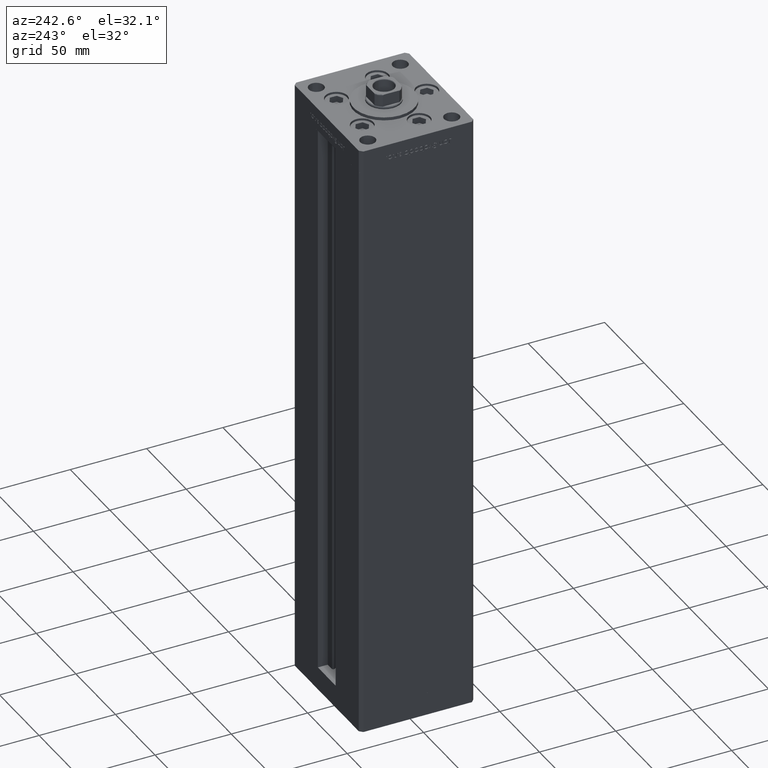
[diagram: clean part render]
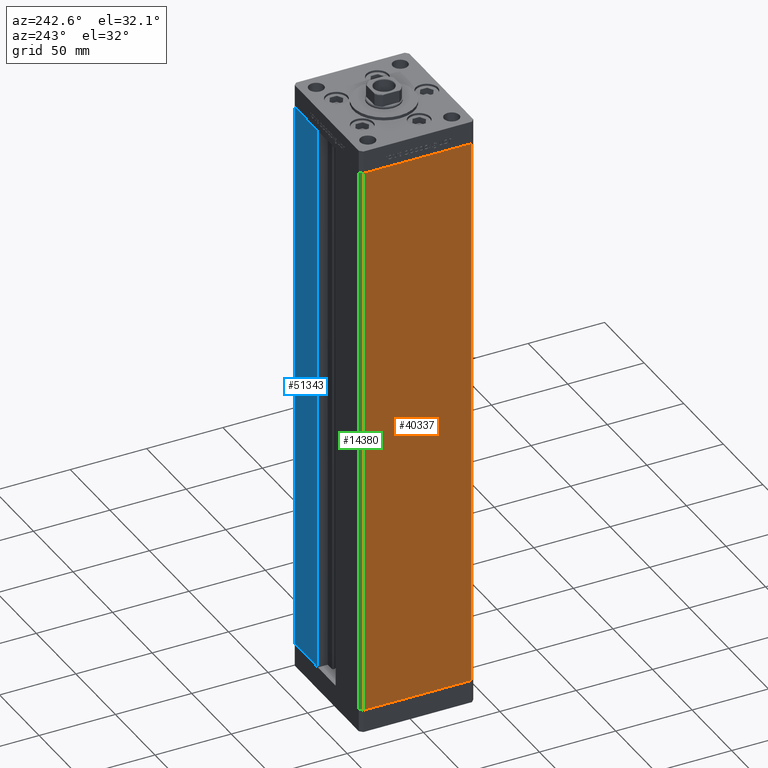
[diagram: same view with three faces highlighted in distinct colors, each labeled with its STEP entity id]
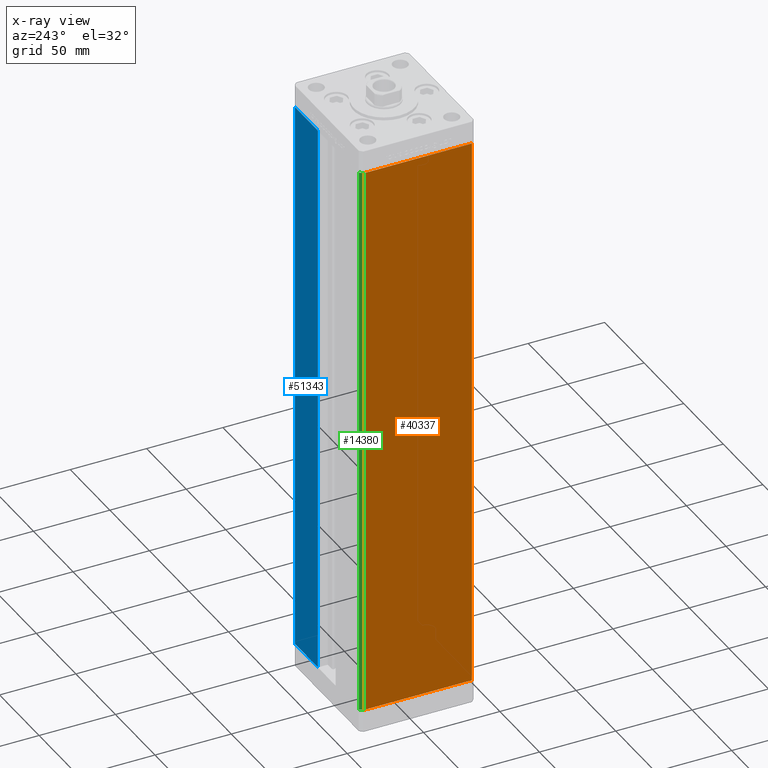
[diagram: x-ray of the same camera — body ghosted, the three highlighted faces saturated]
A machine part, auxiliary view with three faces highlighted in distinct colors.
The next image is the same camera in x-ray (body ghosted, the three faces saturated) — at least one of them is partly hidden behind the body in this view.
Their STEP definitions:

[orange] entity #40337 — the highlighted planar face has unit normal (1, 0, 0).
#719 = CARTESIAN_POINT ( 'NONE',  ( -42.50000000000000711, 35.50000000000001421, 368.5000000000000000 ) ) ;
#1169 = DIRECTION ( 'NONE',  ( 2.931927001650941360E-16, -1.000000000000000000, 0.000000000000000000 ) ) ;
#4866 = LINE ( 'NONE', #8816, #31546 ) ;
#7331 = DIRECTION ( 'NONE',  ( 2.931927001650941360E-16, -1.000000000000000000, 0.000000000000000000 ) ) ;
#8043 = VERTEX_POINT ( 'NONE', #40132 ) ;
#8116 = LINE ( 'NONE', #15243, #41186 ) ;
#8816 = CARTESIAN_POINT ( 'NONE',  ( -42.50000000000000711, 35.50000000000001421, 0.000000000000000000 ) ) ;
#14692 = LINE ( 'NONE', #47116, #24016 ) ;
#15108 = VECTOR ( 'NONE', #22028, 1000.000000000000000 ) ;
#15243 = CARTESIAN_POINT ( 'NONE',  ( -42.50000000000000711, 35.50000000000001421, 368.5000000000000000 ) ) ;
#16301 = ORIENTED_EDGE ( 'NONE', *, *, #16993, .T. ) ;
#16993 = EDGE_CURVE ( 'NONE', #22207, #38926, #4866, .T. ) ;
#22028 = DIRECTION ( 'NONE',  ( -0.000000000000000000, -0.000000000000000000, -1.000000000000000000 ) ) ;
#22207 = VERTEX_POINT ( 'NONE', #36219 ) ;
#22682 = AXIS2_PLACEMENT_3D ( 'NONE', #719, #41862, #48977 ) ;
#22702 = EDGE_CURVE ( 'NONE', #30307, #38926, #14692, .T. ) ;
#24016 = VECTOR ( 'NONE', #30786, 1000.000000000000000 ) ;
#25783 = PLANE ( 'NONE',  #22682 ) ;
#25999 = LINE ( 'NONE', #33123, #15108 ) ;
#30307 = VERTEX_POINT ( 'NONE', #47969 ) ;
#30786 = DIRECTION ( 'NONE',  ( -0.000000000000000000, -0.000000000000000000, -1.000000000000000000 ) ) ;
#31546 = VECTOR ( 'NONE', #1169, 1000.000000000000000 ) ;
#33123 = CARTESIAN_POINT ( 'NONE',  ( -42.50000000000000711, 35.50000000000001421, 368.5000000000000000 ) ) ;
#35977 = EDGE_CURVE ( 'NONE', #8043, #22207, #25999, .T. ) ;
#36219 = CARTESIAN_POINT ( 'NONE',  ( -42.50000000000000711, 35.50000000000001421, 0.000000000000000000 ) ) ;
#38440 = EDGE_CURVE ( 'NONE', #8043, #30307, #8116, .T. ) ;
#38926 = VERTEX_POINT ( 'NONE', #45190 ) ;
#40132 = CARTESIAN_POINT ( 'NONE',  ( -42.50000000000000711, 35.50000000000001421, 368.5000000000000000 ) ) ;
#40337 = ADVANCED_FACE ( 'NONE', ( #45557 ), #25783, .F. ) ;
#41186 = VECTOR ( 'NONE', #7331, 1000.000000000000000 ) ;
#41862 = DIRECTION ( 'NONE',  ( 1.000000000000000000, 2.931927001650941360E-16, -0.000000000000000000 ) ) ;
#45190 = CARTESIAN_POINT ( 'NONE',  ( -42.49999999999998579, -35.50000000000000711, 0.000000000000000000 ) ) ;
#45557 = FACE_OUTER_BOUND ( 'NONE', #47718, .T. ) ;
#47116 = CARTESIAN_POINT ( 'NONE',  ( -42.49999999999998579, -35.50000000000000711, 368.5000000000000000 ) ) ;
#47718 = EDGE_LOOP ( 'NONE', ( #16301, #50290, #51128, #51057 ) ) ;
#47969 = CARTESIAN_POINT ( 'NONE',  ( -42.49999999999998579, -35.50000000000000711, 368.5000000000000000 ) ) ;
#48977 = DIRECTION ( 'NONE',  ( -2.931927001650941360E-16, 1.000000000000000000, 0.000000000000000000 ) ) ;
#50290 = ORIENTED_EDGE ( 'NONE', *, *, #22702, .F. ) ;
#51057 = ORIENTED_EDGE ( 'NONE', *, *, #35977, .T. ) ;
#51128 = ORIENTED_EDGE ( 'NONE', *, *, #38440, .F. ) ;

[blue] entity #51343 — the highlighted planar face has unit normal (-0, -1, 0).
#840 = LINE ( 'NONE', #5060, #43769 ) ;
#1550 = CARTESIAN_POINT ( 'NONE',  ( 11.24999999999999289, 37.50000000000000000, 368.5000000000000000 ) ) ;
#2455 = CARTESIAN_POINT ( 'NONE',  ( 40.50000000000000000, 37.50000000000000711, 368.5000000000000000 ) ) ;
#5060 = CARTESIAN_POINT ( 'NONE',  ( 11.25000000000000000, 37.50000000000000000, 0.000000000000000000 ) ) ;
#10634 = LINE ( 'NONE', #34632, #35281 ) ;
#12416 = CARTESIAN_POINT ( 'NONE',  ( 40.50000000000000000, 37.50000000000000711, 0.000000000000000000 ) ) ;
#14588 = LINE ( 'NONE', #2455, #33241 ) ;
#16361 = ORIENTED_EDGE ( 'NONE', *, *, #26193, .T. ) ;
#17111 = EDGE_CURVE ( 'NONE', #52124, #45512, #14588, .T. ) ;
#18290 = PLANE ( 'NONE',  #21292 ) ;
#21292 = AXIS2_PLACEMENT_3D ( 'NONE', #46779, #22780, #22521 ) ;
#21602 = VECTOR ( 'NONE', #47772, 1000.000000000000000 ) ;
#22243 = DIRECTION ( 'NONE',  ( -0.000000000000000000, -0.000000000000000000, -1.000000000000000000 ) ) ;
#22521 = DIRECTION ( 'NONE',  ( 1.000000000000000000, -2.372271420139223331E-16, 0.000000000000000000 ) ) ;
#22780 = DIRECTION ( 'NONE',  ( -2.372271420139223331E-16, -1.000000000000000000, 0.000000000000000000 ) ) ;
#23977 = EDGE_LOOP ( 'NONE', ( #16361, #35896, #45282, #37648 ) ) ;
#25963 = DIRECTION ( 'NONE',  ( 1.000000000000000000, 0.000000000000000000, 0.000000000000000000 ) ) ;
#26193 = EDGE_CURVE ( 'NONE', #45512, #42360, #31171, .T. ) ;
#27471 = VERTEX_POINT ( 'NONE', #1550 ) ;
#30696 = FACE_OUTER_BOUND ( 'NONE', #23977, .T. ) ;
#31171 = LINE ( 'NONE', #39602, #21602 ) ;
#33241 = VECTOR ( 'NONE', #22243, 1000.000000000000000 ) ;
#34632 = CARTESIAN_POINT ( 'NONE',  ( -11.25000000000000000, 37.50000000000000000, 368.5000000000000000 ) ) ;
#35281 = VECTOR ( 'NONE', #25963, 1000.000000000000000 ) ;
#35896 = ORIENTED_EDGE ( 'NONE', *, *, #37551, .T. ) ;
#36085 = CARTESIAN_POINT ( 'NONE',  ( 11.25000000000000000, 37.50000000000000000, 0.000000000000000000 ) ) ;
#37551 = EDGE_CURVE ( 'NONE', #42360, #27471, #840, .T. ) ;
#37648 = ORIENTED_EDGE ( 'NONE', *, *, #17111, .T. ) ;
#39602 = CARTESIAN_POINT ( 'NONE',  ( -11.25000000000000000, 37.50000000000000000, 0.000000000000000000 ) ) ;
#39973 = EDGE_CURVE ( 'NONE', #27471, #52124, #10634, .T. ) ;
#42360 = VERTEX_POINT ( 'NONE', #36085 ) ;
#43140 = CARTESIAN_POINT ( 'NONE',  ( 40.50000000000000000, 37.50000000000000711, 368.5000000000000000 ) ) ;
#43769 = VECTOR ( 'NONE', #46949, 1000.000000000000000 ) ;
#45282 = ORIENTED_EDGE ( 'NONE', *, *, #39973, .T. ) ;
#45512 = VERTEX_POINT ( 'NONE', #12416 ) ;
#46779 = CARTESIAN_POINT ( 'NONE',  ( -11.25000000000000000, 37.50000000000000000, 368.5000000000000000 ) ) ;
#46949 = DIRECTION ( 'NONE',  ( -0.000000000000000000, -0.000000000000000000, 1.000000000000000000 ) ) ;
#47772 = DIRECTION ( 'NONE',  ( -1.000000000000000000, 2.372271420139223331E-16, 0.000000000000000000 ) ) ;
#51343 = ADVANCED_FACE ( 'NONE', ( #30696 ), #18290, .F. ) ;
#52124 = VERTEX_POINT ( 'NONE', #43140 ) ;

[green] entity #14380 — the highlighted planar face has unit normal (0.7071, -0.7071, 0).
#680 = FACE_OUTER_BOUND ( 'NONE', #13881, .T. ) ;
#2023 = ORIENTED_EDGE ( 'NONE', *, *, #26942, .T. ) ;
#2253 = VECTOR ( 'NONE', #18545, 1000.000000000000000 ) ;
#3029 = ORIENTED_EDGE ( 'NONE', *, *, #15148, .F. ) ;
#4609 = DIRECTION ( 'NONE',  ( -0.7071067811865500152, -0.7071067811865451302, 0.000000000000000000 ) ) ;
#4979 = CARTESIAN_POINT ( 'NONE',  ( -40.50000000000000000, 37.50000000000000711, 368.5000000000000000 ) ) ;
#6937 = LINE ( 'NONE', #39376, #2253 ) ;
#8043 = VERTEX_POINT ( 'NONE', #40132 ) ;
#8917 = VERTEX_POINT ( 'NONE', #13032 ) ;
#12068 = AXIS2_PLACEMENT_3D ( 'NONE', #40781, #33118, #49470 ) ;
#13032 = CARTESIAN_POINT ( 'NONE',  ( -40.50000000000000000, 37.50000000000000711, 368.5000000000000000 ) ) ;
#13047 = LINE ( 'NONE', #36253, #13177 ) ;
#13177 = VECTOR ( 'NONE', #4609, 1000.000000000000114 ) ;
#13881 = EDGE_LOOP ( 'NONE', ( #2023, #18500, #3029, #46459 ) ) ;
#14380 = ADVANCED_FACE ( 'NONE', ( #680 ), #24691, .F. ) ;
#15108 = VECTOR ( 'NONE', #22028, 1000.000000000000000 ) ;
#15148 = EDGE_CURVE ( 'NONE', #8917, #8043, #17363, .T. ) ;
#17363 = LINE ( 'NONE', #4979, #29820 ) ;
#18500 = ORIENTED_EDGE ( 'NONE', *, *, #35977, .F. ) ;
#18545 = DIRECTION ( 'NONE',  ( -0.000000000000000000, -0.000000000000000000, -1.000000000000000000 ) ) ;
#22028 = DIRECTION ( 'NONE',  ( -0.000000000000000000, -0.000000000000000000, -1.000000000000000000 ) ) ;
#22207 = VERTEX_POINT ( 'NONE', #36219 ) ;
#24691 = PLANE ( 'NONE',  #12068 ) ;
#25999 = LINE ( 'NONE', #33123, #15108 ) ;
#26942 = EDGE_CURVE ( 'NONE', #44066, #22207, #13047, .T. ) ;
#28201 = EDGE_CURVE ( 'NONE', #8917, #44066, #6937, .T. ) ;
#29820 = VECTOR ( 'NONE', #37671, 1000.000000000000114 ) ;
#33118 = DIRECTION ( 'NONE',  ( 0.7071067811865451302, -0.7071067811865499042, 0.000000000000000000 ) ) ;
#33123 = CARTESIAN_POINT ( 'NONE',  ( -42.50000000000000711, 35.50000000000001421, 368.5000000000000000 ) ) ;
#35977 = EDGE_CURVE ( 'NONE', #8043, #22207, #25999, .T. ) ;
#36219 = CARTESIAN_POINT ( 'NONE',  ( -42.50000000000000711, 35.50000000000001421, 0.000000000000000000 ) ) ;
#36253 = CARTESIAN_POINT ( 'NONE',  ( -40.50000000000000000, 37.50000000000000711, 0.000000000000000000 ) ) ;
#37671 = DIRECTION ( 'NONE',  ( -0.7071067811865500152, -0.7071067811865451302, 0.000000000000000000 ) ) ;
#39376 = CARTESIAN_POINT ( 'NONE',  ( -40.50000000000000000, 37.50000000000000711, 368.5000000000000000 ) ) ;
#40132 = CARTESIAN_POINT ( 'NONE',  ( -42.50000000000000711, 35.50000000000001421, 368.5000000000000000 ) ) ;
#40781 = CARTESIAN_POINT ( 'NONE',  ( -40.50000000000000000, 37.50000000000000711, 368.5000000000000000 ) ) ;
#44066 = VERTEX_POINT ( 'NONE', #49101 ) ;
#46459 = ORIENTED_EDGE ( 'NONE', *, *, #28201, .T. ) ;
#49101 = CARTESIAN_POINT ( 'NONE',  ( -40.50000000000000000, 37.50000000000000711, 0.000000000000000000 ) ) ;
#49470 = DIRECTION ( 'NONE',  ( 0.7071067811865499042, 0.7071067811865451302, 0.000000000000000000 ) ) ;